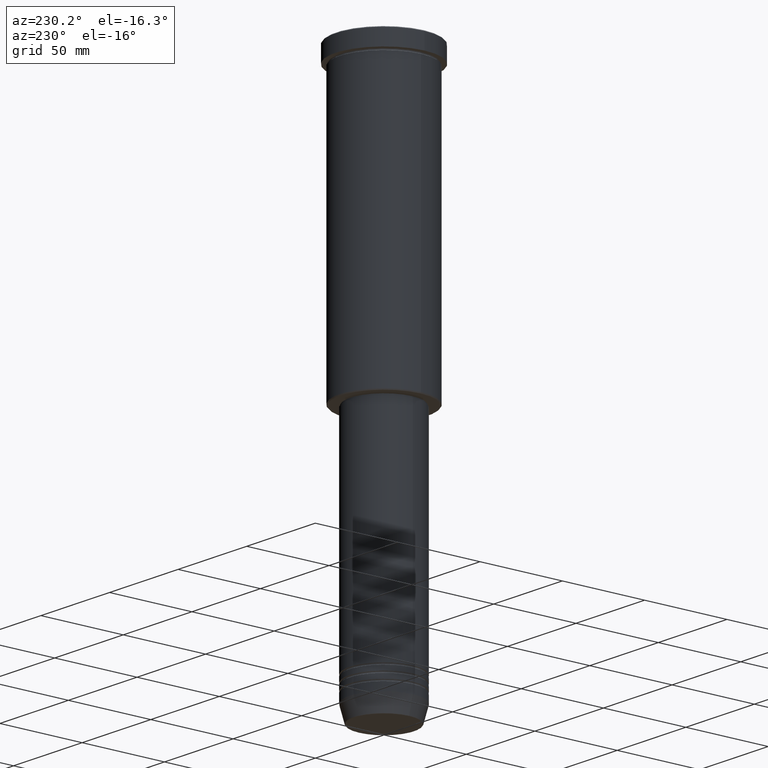
[diagram: clean part render]
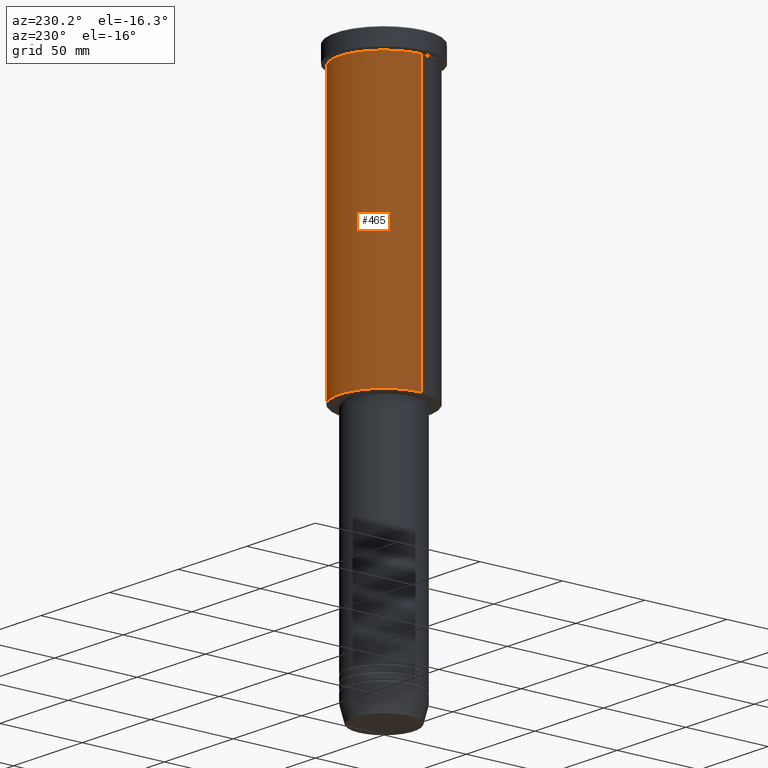
[diagram: same view with one face highlighted and labeled with its STEP entity id]
A machine part, auxiliary view. The second image highlights one B-rep face of the part: STEP entity #465.
In plain terms, the highlighted cylindrical surface (partial cylindrical patch) has radius 27 mm, axis along (-0, -0, 1).
Its self-contained STEP definition (entity closure, byte-faithful):
#21 = CARTESIAN_POINT ( 'NONE',  ( -27.00000000000000355, 3.306546357697854128E-15, 0.000000000000000000 ) ) ;
#42 = CIRCLE ( 'NONE', #586, 27.00000000000000355 ) ;
#89 = CARTESIAN_POINT ( 'NONE',  ( 0.000000000000000000, 0.000000000000000000, -10.99999999999999289 ) ) ;
#105 = VECTOR ( 'NONE', #975, 1000.000000000000000 ) ;
#190 = DIRECTION ( 'NONE',  ( -0.000000000000000000, -0.000000000000000000, 1.000000000000000000 ) ) ;
#235 = AXIS2_PLACEMENT_3D ( 'NONE', #89, #190, #554 ) ;
#282 = DIRECTION ( 'NONE',  ( 1.000000000000000000, 0.000000000000000000, 0.000000000000000000 ) ) ;
#284 = LINE ( 'NONE', #21, #773 ) ;
#286 = EDGE_LOOP ( 'NONE', ( #344, #852, #648, #685 ) ) ;
#335 = CARTESIAN_POINT ( 'NONE',  ( 27.00000000000000355, 0.000000000000000000, -10.99999999999999289 ) ) ;
#344 = ORIENTED_EDGE ( 'NONE', *, *, #347, .T. ) ;
#347 = EDGE_CURVE ( 'NONE', #1027, #733, #42, .T. ) ;
#355 = DIRECTION ( 'NONE',  ( -0.000000000000000000, -0.000000000000000000, 1.000000000000000000 ) ) ;
#368 = DIRECTION ( 'NONE',  ( -0.000000000000000000, -0.000000000000000000, 1.000000000000000000 ) ) ;
#418 = AXIS2_PLACEMENT_3D ( 'NONE', #802, #355, #282 ) ;
#449 = CYLINDRICAL_SURFACE ( 'NONE', #418, 27.00000000000000355 ) ;
#465 = ADVANCED_FACE ( 'NONE', ( #1071 ), #449, .T. ) ;
#469 = DIRECTION ( 'NONE',  ( -0.000000000000000000, -0.000000000000000000, 1.000000000000000000 ) ) ;
#554 = DIRECTION ( 'NONE',  ( 1.000000000000000000, 0.000000000000000000, 0.000000000000000000 ) ) ;
#586 = AXIS2_PLACEMENT_3D ( 'NONE', #817, #368, #729 ) ;
#619 = CARTESIAN_POINT ( 'NONE',  ( -27.00000000000000355, 3.306546357697854128E-15, -175.4999999999999716 ) ) ;
#648 = ORIENTED_EDGE ( 'NONE', *, *, #770, .F. ) ;
#650 = LINE ( 'NONE', #1007, #105 ) ;
#656 = CARTESIAN_POINT ( 'NONE',  ( 27.00000000000000355, 0.000000000000000000, -175.4999999999999716 ) ) ;
#685 = ORIENTED_EDGE ( 'NONE', *, *, #812, .F. ) ;
#696 = VERTEX_POINT ( 'NONE', #335 ) ;
#729 = DIRECTION ( 'NONE',  ( -1.000000000000000000, 0.000000000000000000, 0.000000000000000000 ) ) ;
#733 = VERTEX_POINT ( 'NONE', #619 ) ;
#770 = EDGE_CURVE ( 'NONE', #696, #1033, #946, .T. ) ;
#773 = VECTOR ( 'NONE', #469, 1000.000000000000000 ) ;
#802 = CARTESIAN_POINT ( 'NONE',  ( 0.000000000000000000, 0.000000000000000000, 0.000000000000000000 ) ) ;
#812 = EDGE_CURVE ( 'NONE', #1027, #696, #650, .T. ) ;
#817 = CARTESIAN_POINT ( 'NONE',  ( 0.000000000000000000, 0.000000000000000000, -175.4999999999999716 ) ) ;
#852 = ORIENTED_EDGE ( 'NONE', *, *, #1062, .T. ) ;
#946 = CIRCLE ( 'NONE', #235, 27.00000000000000355 ) ;
#975 = DIRECTION ( 'NONE',  ( -0.000000000000000000, -0.000000000000000000, 1.000000000000000000 ) ) ;
#1007 = CARTESIAN_POINT ( 'NONE',  ( 27.00000000000000355, 0.000000000000000000, 0.000000000000000000 ) ) ;
#1010 = CARTESIAN_POINT ( 'NONE',  ( -27.00000000000000355, 3.306546357697854128E-15, -10.99999999999999289 ) ) ;
#1027 = VERTEX_POINT ( 'NONE', #656 ) ;
#1033 = VERTEX_POINT ( 'NONE', #1010 ) ;
#1062 = EDGE_CURVE ( 'NONE', #733, #1033, #284, .T. ) ;
#1071 = FACE_OUTER_BOUND ( 'NONE', #286, .T. ) ;